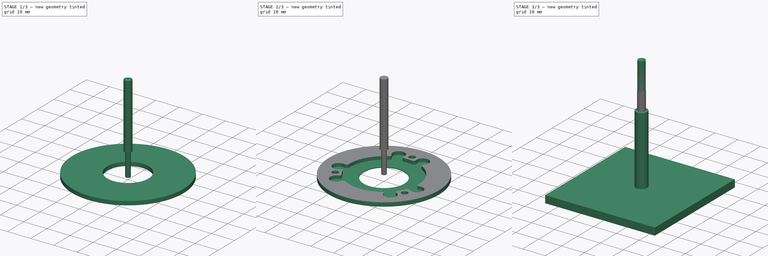
[diagram: build sequence overview — one tinted view per stage of 3, left to right]
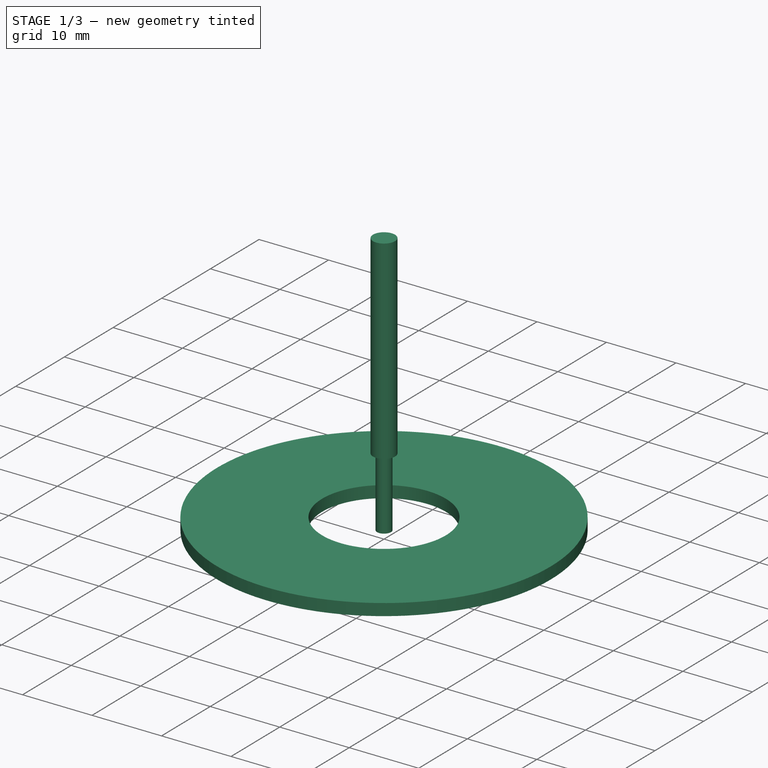
[diagram: stage 1 of 3 — iso view after this stage's code; geometry added in this stage tinted green]
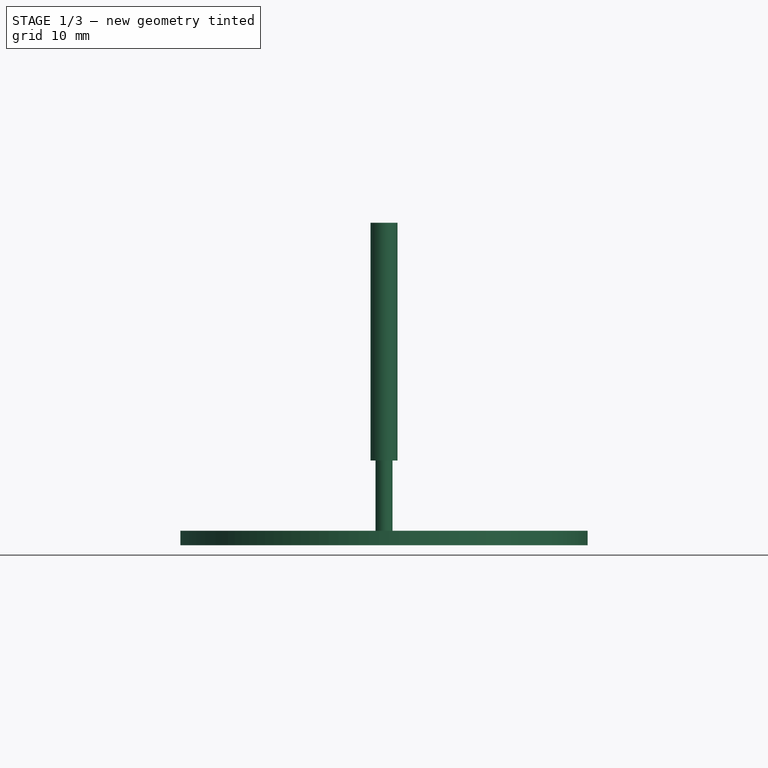
[diagram: stage 1 of 3 — front view after this stage's code; geometry added in this stage tinted green]
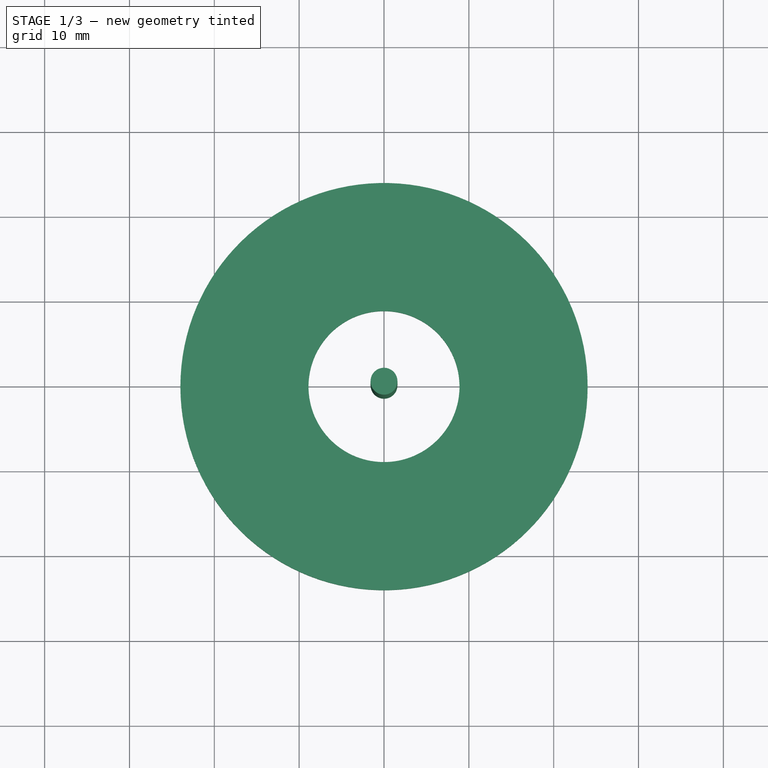
[diagram: stage 1 of 3 — top view after this stage's code; geometry added in this stage tinted green]
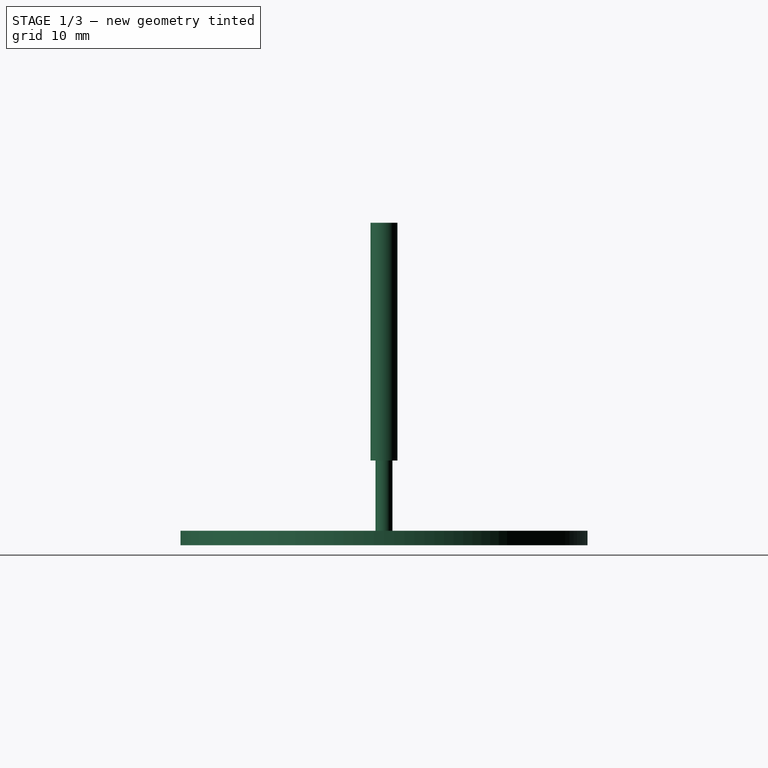
[diagram: stage 1 of 3 — right view after this stage's code; geometry added in this stage tinted green]
FCSTD DOCUMENT  (FreeCAD 0.22R37841 (Git))
Label: magcartrige_cuttop
License: All rights reserved
LicenseURL: http://en.wikipedia.org/wiki/All_rights_reserved
objects: Path::FeaturePython×6, Part::FeaturePython×4, Sketcher::SketchObject×3, App::DocumentObjectGroup×3, PartDesign::CoordinateSystem×2, PartDesign::Revolution×1, PartDesign::Pocket×1, PartDesign::Hole×1, PartDesign::Body×1, App::FeaturePython×1
note: 19 computed .brp shape members not serialized (recipe doc carries the construction recipe); baked Part::Feature solids carry a one-line shape summary decoded from their .brp

FEATURE [PartDesign::CoordinateSystem] LCS_Origin
  AttacherType = Attacher::AttachEngine3D
  MapMode = 2
FEATURE [PartDesign::CoordinateSystem] LCS_Origin001
  AttacherType = Attacher::AttachEngine3D
  AttachmentSupport = -> [X_Axis001]
  MapMode = 2
FEATURE [Sketcher::SketchObject] Sketch
  AttachmentSupport = -> [XZ_Plane001]
  FullyConstrained = true
  MapMode = 5
  Placement = pos=(0,0,0) rot=(1,0,0;1.5708rad)
  sketch-geometry (5):
    g0: LineSegment StartX=0 StartY=0 StartZ=0 EndX=0 EndY=1.7 EndZ=0
    g1: LineSegment StartX=8.9 StartY=0 StartZ=0 EndX=8.9 EndY=1.7 EndZ=0
    g2: LineSegment StartX=24 StartY=0 StartZ=0 EndX=8.9 EndY=0 EndZ=0
    g3: LineSegment StartX=24 StartY=1.7 StartZ=0 EndX=24 EndY=0 EndZ=0
    g4: LineSegment StartX=8.9 StartY=1.7 StartZ=0 EndX=24 EndY=1.7 EndZ=0
  constraints (15):
    c: Coincident(g0,g-1)
    c: PointOnObject(g0,g-2)
    c: PointOnObject(g1,g-1)
    c: PointOnObject(g2,g-1)
    c: Coincident(g2,g1)
    c: Vertical(g1)
    c: DistanceX(g0,g1) = 8.9
    c: DistanceX(g0,g2) = 24
    c: Coincident(g3,g2)
    c: Vertical(g3)
    c: Coincident(g4,g1)
    c: Horizontal(g4)
    c: DistanceY(g3,g3) = 1.7
    c: PointOnObject(g0,g4)
    c: Coincident(g4,g3)
FEATURE [PartDesign::Revolution] Revolution
  Angle = 360
  Angle2 = 60
  Axis = (0,2e-16,1)
  Base = (0,0,0)
  Placement = pos=(0,0,0) rot=(1,0,0;1.5708rad)
  Profile = -> Sketch
  ReferenceAxis = -> Sketch [V_Axis]
  Reversed = true
  Suppressed = false
  Type = 0
FEATURE [Part::FeaturePython] ToolBit001  label="2mm Endmill"  # Path/CAM toolbit (typed FeaturePython)
  BitPropertyNames = Chipload | CuttingEdgeHeight | Diameter | Flutes | Length | Material | ShankDiameter | SpindleDirection
  BitShape = <userpath>/Documents/FreeCAD/Tools/Shape/endmill.fcstd
  Chipload = 0
  CuttingEdgeHeight = 10
  Diameter = 2
  File = <userpath>/Documents/FreeCAD/Tools/Bit/2mm_Endmill.fctb
  Flutes = 0
  Length = 38
  Material = 0
  ShankDiameter = 3.17
  ShapeName = endmill
  SpindleDirection = 0
FEATURE [Path::FeaturePython] _mm_Endmill  label="2mm Endmill001"  # Path/CAM operation (typed FeaturePython)
  HorizFeed = 0.833333
  HorizRapid = 0
  SpindleDir = 0
  SpindleSpeed = 1000
  Tool = -> ToolBit001
  ToolNumber = 2
  VertFeed = 0.833333
  VertRapid = 0
  expr: HorizRapid = SetupSheet.HorizRapid
  expr: VertRapid = SetupSheet.VertRapid
FEATURE [App::DocumentObjectGroup] Tools
  Group = -> [TC__Default_Tool,_mm_Endmill]
FEATURE [Path::FeaturePython] Profile  # Path/CAM operation (typed FeaturePython)
  Active = true
  AreaParams:
    Tolerance = 1e-07
    FitArcs = True
    Simplify = False
    CleanDistance = 0.0
    Accuracy = 0.01
    Unit = 1.0
    MinArcPoints = 4
    MaxArcPoints = 100
    ClipperScale = 10000000.0
    Fill = 0
    Coplanar = 0
    Reorient = True
    Outline = False
    Explode = False
    OpenMode = 0
    Deflection = 0.01
    SubjectFill = 0
    ClipFill = 0
    Offset = -1.0
    ExtraPass = 0
    Stepover = 0.0
    LastStepover = 0.0
    JoinType = 0
    EndType = 0
    MiterLimit = 2.0
    RoundPrecision = 0.0
    PocketMode = 0
    ToolRadius = 1.0
    PocketExtraOffset = 0.0
    PocketStepover = 0.0
    PocketLastStepover = 0.0
    FromCenter = False
    Angle = 45.0
    AngleShift = 0.0
    Shift = 0.0
    Thicken = False
    SectionCount = -1
    Stepdown = 1.0
    SectionOffset = 0.0
    SectionTolerance = 1e-06
    SectionMode = 2
    Project = False
  Base = -> [Clone]
  ClearanceHeight = 5
  CoolantMode = 0
  CycleTime = 00:06:59
  Direction = 0
  FinalDepth = -1.8
  HandleMultipleFeatures = 0
  JoinType = 0
  MiterLimit = 0.1
  OffsetExtra = 0
  OpFinalDepth = 5.8e-15
  OpStartDepth = 0.6
  OpStockZMax = 1.09e-14
  OpStockZMin = -3.2
  OpToolDiameter = 2
  PathParams = {'orientation': 1, 'feedrate': 0.8333333333333334, 'feedrate_v': 0.8333333333333334, 'verbose': True, 'resume_height': 3.0000000000000107, 'retraction': 5.000000000000011, 'return_end': True, 'preamble': False, 'start': Vector (-14.980829684496175, -8.453992709613553, 5.000000000000011)}
  SafeHeight = 3
  Side = 1
  SplitArcs = false
  StartDepth = 0.6
  StartPoint = (0,0,0)
  StepDown = 0.6
  ToolController = -> _mm_Endmill
  UseComp = true
  UseStartPoint = false
  processCircles = false
  processHoles = false
  processPerimeter = true
  expr: ClearanceHeight = OpStockZMax + SetupSheet.ClearanceHeightOffset
  expr: FinalDepth = -1.8
  expr: SafeHeight = OpStockZMax + SetupSheet.SafeHeightOffset
  expr: StartDepth = OpStartDepth
  expr: StepDown = 0.6
FEATURE [Path::FeaturePython] Pocket_Shape  # Path/CAM operation (typed FeaturePython)
  Active = true
  AreaParams:
    Tolerance = 1e-07
    FitArcs = True
    Simplify = False
    CleanDistance = 0.0
    Accuracy = 0.01
    Unit = 1.0
    MinArcPoints = 4
    MaxArcPoints = 100
    ClipperScale = 10000000.0
    Fill = 0
    Coplanar = 0
    Reorient = True
    Outline = False
    Explode = False
    OpenMode = 0
    Deflection = 0.01
    SubjectFill = 0
    ClipFill = 0
    Offset = 0.0
    ExtraPass = 0
    Stepover = 0.0
    LastStepover = 0.0
    JoinType = 0
    EndType = 0
    MiterLimit = 2.0
    RoundPrecision = 0.0
    PocketMode = 2
    ToolRadius = 1.0
    PocketExtraOffset = 0.0
    PocketStepover = 1.0
    PocketLastStepover = 0.0
    FromCenter = True
    Angle = 45.0
    AngleShift = 0.0
    Shift = 0.0
    Thicken = False
    SectionCount = -1
    Stepdown = 1.0
    SectionOffset = 0.0
    SectionTolerance = 1e-06
    SectionMode = 2
    Project = False
  Base = -> [Clone]
  ClearanceHeight = 5
  CoolantMode = 0
  CutMode = 0
  CycleTime = 01:18:27
  ExtensionCorners = true
  ExtensionLengthDefault = 1
  ExtraOffset = 0
  FinalDepth = -1.4
  FinishDepth = 0
  KeepToolDown = false
  MinTravel = true
  OffsetPattern = 1
  OpFinalDepth = -1.4
  OpStartDepth = 1.09e-14
  OpStockZMax = 1.09e-14
  OpStockZMin = -3.2
  OpToolDiameter = 2
  PathParams:
    orientation = 1
    feedrate = 0.8333333333333334
    feedrate_v = 0.8333333333333334
    verbose = True
    resume_height = 3.0000000000000107
    retraction = 5.000000000000011
    return_end = True
    preamble = False
  PocketLastStepOver = 0
  SafeHeight = 3
  SplitArcs = false
  StartAt = 0
  StartDepth = 1.09e-14
  StartPoint = (0,0,0)
  StepDown = 0.25
  StepOver = 50
  ToolController = -> _mm_Endmill
  UseOutline = false
  UseRestMachining = false
  UseStartPoint = false
  ZigZagAngle = 45
  expr: ClearanceHeight = OpStockZMax + SetupSheet.ClearanceHeightOffset
  expr: ExtensionLengthDefault = OpToolDiameter / 2
  expr: FinalDepth = OpFinalDepth
  expr: SafeHeight = OpStockZMax + SetupSheet.SafeHeightOffset
  expr: StartDepth = OpStartDepth
  expr: StepDown = 0.25
FEATURE [Path::FeaturePython] Profile001  # Path/CAM operation (typed FeaturePython)
  Active = true
  AreaParams:
    Tolerance = 1e-07
    FitArcs = True
    Simplify = False
    CleanDistance = 0.0
    Accuracy = 0.01
    Unit = 1.0
    MinArcPoints = 4
    MaxArcPoints = 100
    ClipperScale = 10000000.0
    Fill = 0
    Coplanar = 0
    Reorient = True
    Outline = False
    Explode = False
    OpenMode = 0
    Deflection = 0.01
    SubjectFill = 0
    ClipFill = 0
    Offset = 1.0
    ExtraPass = 0
    Stepover = 0.0
    LastStepover = 0.0
    JoinType = 0
    EndType = 0
    MiterLimit = 2.0
    RoundPrecision = 0.0
    PocketMode = 0
    ToolRadius = 1.0
    PocketExtraOffset = 0.0
    PocketStepover = 0.0
    PocketLastStepover = 0.0
    FromCenter = False
    Angle = 45.0
    AngleShift = 0.0
    Shift = 0.0
    Thicken = False
    SectionCount = -1
    Stepdown = 1.0
    SectionOffset = 0.0
    SectionTolerance = 1e-06
    SectionMode = 2
    Project = False
  Base = -> [Clone]
  ClearanceHeight = 5
  CoolantMode = 0
  CycleTime = 00:19:35
  Direction = 0
  FinalDepth = -1.7
  HandleMultipleFeatures = 0
  JoinType = 0
  MiterLimit = 0.1
  OffsetExtra = 0
  OpFinalDepth = -1.7
  OpStartDepth = 1.09e-14
  OpStockZMax = 1.09e-14
  OpStockZMin = -3.2
  OpToolDiameter = 2
  PathParams:
    orientation = 1
    feedrate = 0.8333333333333334
    feedrate_v = 0.8333333333333334
    verbose = True
    resume_height = 3.0000000000000107
    retraction = 5.000000000000011
    return_end = True
    preamble = False
  SafeHeight = 3
  Side = 0
  SplitArcs = false
  StartDepth = 1.09e-14
  StartPoint = (0,0,0)
  StepDown = 0.3
  ToolController = -> _mm_Endmill
  UseComp = true
  UseStartPoint = false
  processCircles = false
  processHoles = false
  processPerimeter = true
  expr: ClearanceHeight = OpStockZMax + SetupSheet.ClearanceHeightOffset
  expr: FinalDepth = OpFinalDepth
  expr: SafeHeight = OpStockZMax + SetupSheet.SafeHeightOffset
  expr: StartDepth = OpStartDepth
  expr: StepDown = 0.3
FEATURE [App::DocumentObjectGroup] Operations
  Group = -> [Profile,Pocket_Shape,Profile001]
FEATURE [Path::FeaturePython] Job  # Path/CAM operation (typed FeaturePython)
  CycleTime = 01:45:01
  Fixtures = G54
  GeometryTolerance = 0.01
  JobType = 0
  Model = -> Model
  Operations = -> Operations
  OrderOutputBy = 0
  PostProcessor = 11
  SetupSheet = -> SetupSheet
  SplitOutput = false
  Stock = -> Stock
  Tools = -> Tools
note: 1 file-system path scrubbed to <path> (originals preserved in the JSON sidecar)
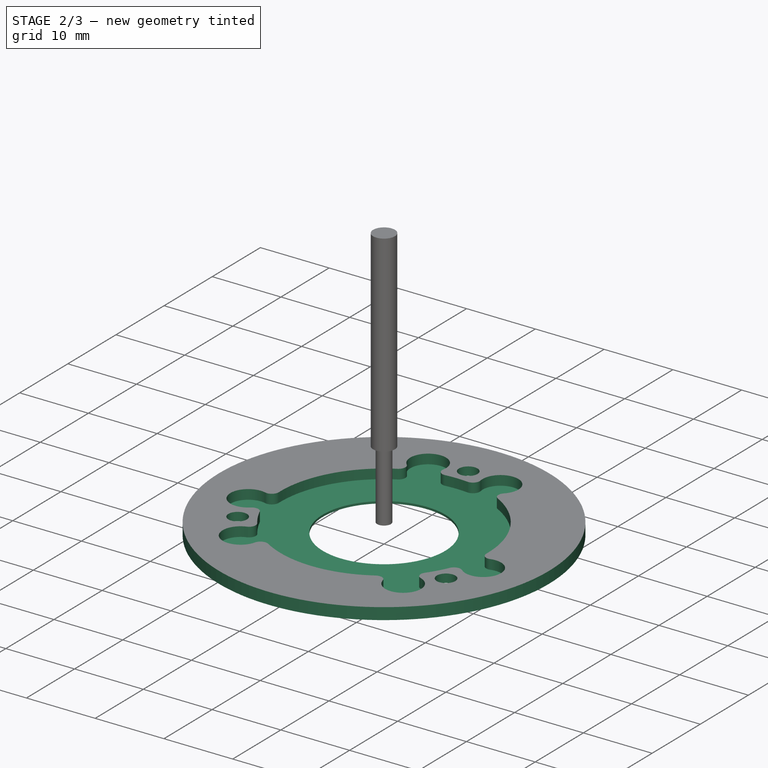
[diagram: stage 2 of 3 — iso view after this stage's code; geometry added in this stage tinted green]
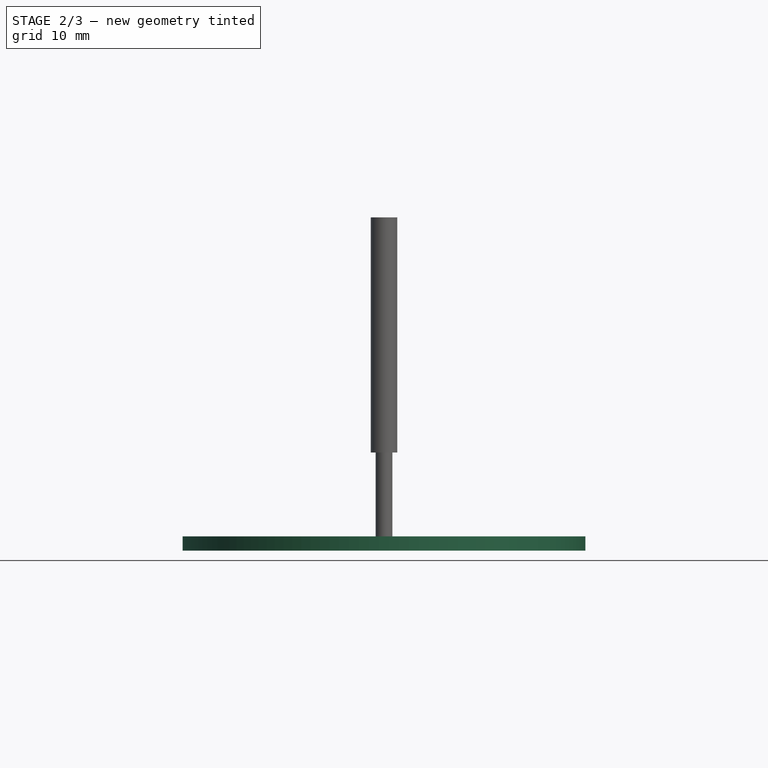
[diagram: stage 2 of 3 — front view after this stage's code; geometry added in this stage tinted green]
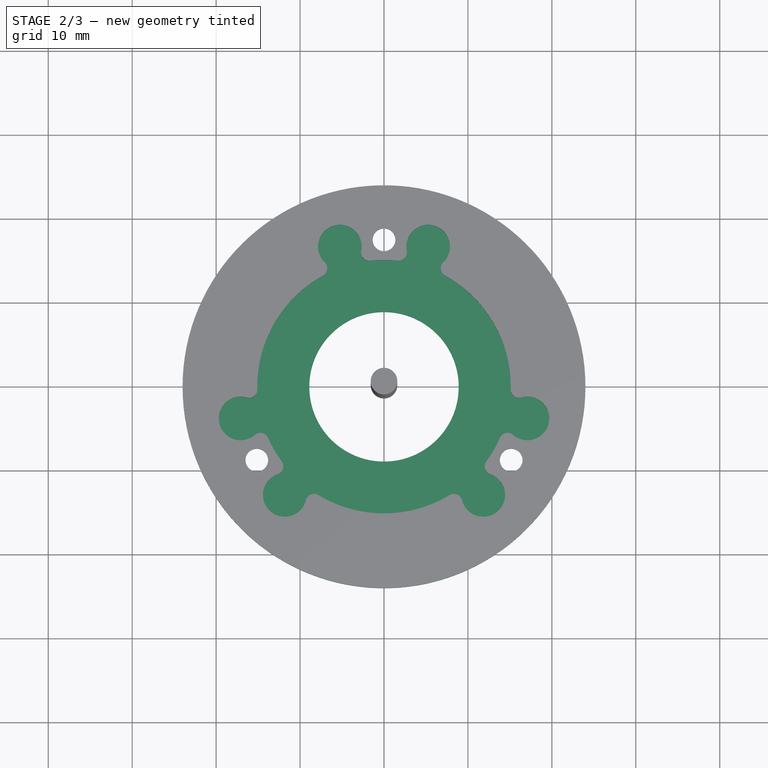
[diagram: stage 2 of 3 — top view after this stage's code; geometry added in this stage tinted green]
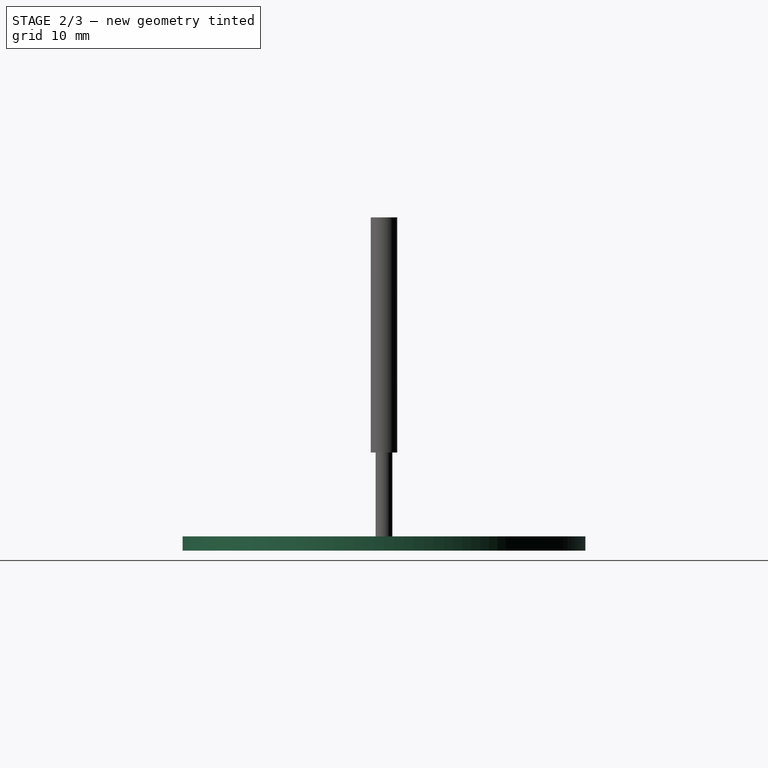
[diagram: stage 2 of 3 — right view after this stage's code; geometry added in this stage tinted green]
FEATURE [Sketcher::SketchObject] Sketch001
  AttachmentOffset = pos=(0,0,0.3) rot=(0,0,1;0rad)
  AttachmentSupport = -> [XY_Plane001]
  FullyConstrained = true
  MapMode = 5
  Placement = pos=(0,0,0.3) rot=(0,0,1;0rad)
  sketch-geometry (32):
    g0: LineSegment StartX=17.0852 StartY=-3.78769 StartZ=0 EndX=5.26235 EndY=16.69 EndZ=0
    g1: LineSegment StartX=5.26235 StartY=16.69 StartZ=0 EndX=-5.26235 EndY=16.69 EndZ=0
    g2: LineSegment StartX=-5.26235 StartY=16.69 StartZ=0 EndX=-17.0852 EndY=-3.78769 EndZ=0
    g3: LineSegment StartX=-17.0852 StartY=-3.78769 StartZ=0 EndX=-11.8228 EndY=-12.9024 EndZ=0
    g4: LineSegment StartX=-11.8228 StartY=-12.9024 StartZ=0 EndX=11.8228 EndY=-12.9024 EndZ=0
    g5: LineSegment StartX=11.8228 StartY=-12.9024 StartZ=0 EndX=17.0852 EndY=-3.78769 EndZ=0
    g6: Circle CenterX=0 CenterY=0 CenterZ=0 NormalX=0 NormalY=0 NormalZ=1 AngleXU=0 Radius=17.5
    g7: ArcOfCircle CenterX=-17.0852 CenterY=-3.78769 CenterZ=0 NormalX=0 NormalY=0 NormalZ=1 AngleXU=0 Radius=2.6 StartAngle=1.29265 EndAngle=5.42687
    g8: ArcOfCircle CenterX=-14.7264 CenterY=-6.50725 CenterZ=0 NormalX=0 NormalY=0 NormalZ=1 AngleXU=0 Radius=1 StartAngle=0.416079 EndAngle=2.28528
    g9: ArcOfCircle CenterX=-16.0967 CenterY=-0.32606 CenterZ=0 NormalX=0 NormalY=0 NormalZ=1 AngleXU=0 Radius=1 StartAngle=4.43424 EndAngle=6.30344
    g10: ArcOfCircle CenterX=0 CenterY=0 CenterZ=0 NormalX=0 NormalY=0 NormalZ=1 AngleXU=0 Radius=15.1 StartAngle=2.07414 EndAngle=3.16185
    g11: ArcOfCircle CenterX=-5.26235 CenterY=16.69 CenterZ=0 NormalX=0 NormalY=0 NormalZ=1 AngleXU=0 Radius=2.6 StartAngle=6.0923 EndAngle=10.2265
    g12: ArcOfCircle CenterX=-7.76597 CenterY=14.1032 CenterZ=0 NormalX=0 NormalY=0 NormalZ=1 AngleXU=0 Radius=1 StartAngle=5.21573 EndAngle=7.08494
    g13: ArcOfCircle CenterX=0 CenterY=0 CenterZ=0 NormalX=0 NormalY=0 NormalZ=1 AngleXU=0 Radius=15.1 StartAngle=1.46328 EndAngle=1.67832
    g14: ArcOfCircle CenterX=5.26235 CenterY=16.69 CenterZ=0 NormalX=0 NormalY=0 NormalZ=1 AngleXU=0 Radius=2.6 StartAngle=5.48144 EndAngle=9.61566
    g15: ArcOfCircle CenterX=0 CenterY=0 CenterZ=0 NormalX=0 NormalY=0 NormalZ=1 AngleXU=0 Radius=15.1 StartAngle=6.26293 EndAngle=7.35064
    g16: ArcOfCircle CenterX=17.0852 CenterY=-3.78769 CenterZ=0 NormalX=0 NormalY=0 NormalZ=1 AngleXU=0 Radius=2.6 StartAngle=3.99791 EndAngle=8.13213
    g17: ArcOfCircle CenterX=0 CenterY=0 CenterZ=0 NormalX=0 NormalY=0 NormalZ=1 AngleXU=0 Radius=15.1 StartAngle=5.65207 EndAngle=5.86711
    g18: ArcOfCircle CenterX=11.8228 CenterY=-12.9024 CenterZ=0 NormalX=0 NormalY=0 NormalZ=1 AngleXU=0 Radius=2.6 StartAngle=3.38704 EndAngle=7.52127
    g19: ArcOfCircle CenterX=0 CenterY=0 CenterZ=0 NormalX=0 NormalY=0 NormalZ=1 AngleXU=0 Radius=15.1 StartAngle=4.16854 EndAngle=5.25624
    g20: ArcOfCircle CenterX=-11.8228 CenterY=-12.9024 CenterZ=0 NormalX=0 NormalY=0 NormalZ=1 AngleXU=0 Radius=2.6 StartAngle=1.90351 EndAngle=6.03774
    g21: ArcOfCircle CenterX=0 CenterY=0 CenterZ=0 NormalX=0 NormalY=0 NormalZ=1 AngleXU=0 Radius=15.1 StartAngle=3.55767 EndAngle=3.77271
    g22: ArcOfCircle CenterX=-1.72774 CenterY=16.007 CenterZ=0 NormalX=0 NormalY=0 NormalZ=1 AngleXU=0 Radius=1 StartAngle=2.95071 EndAngle=4.81991
    g23: ArcOfCircle CenterX=1.72774 CenterY=16.007 CenterZ=0 NormalX=0 NormalY=0 NormalZ=1 AngleXU=0 Radius=1 StartAngle=4.60487 EndAngle=6.47407
    g24: ArcOfCircle CenterX=7.76597 CenterY=14.1032 CenterZ=0 NormalX=0 NormalY=0 NormalZ=1 AngleXU=0 Radius=1 StartAngle=2.33984 EndAngle=4.20904
    g25: ArcOfCircle CenterX=16.0967 CenterY=-0.32606 CenterZ=0 NormalX=0 NormalY=0 NormalZ=1 AngleXU=0 Radius=1 StartAngle=3.12134 EndAngle=4.99054
    g26: ArcOfCircle CenterX=14.7264 CenterY=-6.50725 CenterZ=0 NormalX=0 NormalY=0 NormalZ=1 AngleXU=0 Radius=1 StartAngle=0.856313 EndAngle=2.72551
    g27: ArcOfCircle CenterX=12.9986 CenterY=-9.49978 CenterZ=0 NormalX=0 NormalY=0 NormalZ=1 AngleXU=0 Radius=1 StartAngle=2.51047 EndAngle=4.37967
    g28: ArcOfCircle CenterX=8.33073 CenterY=-13.7771 CenterZ=0 NormalX=0 NormalY=0 NormalZ=1 AngleXU=0 Radius=1 StartAngle=0.245448 EndAngle=2.11465
    g29: ArcOfCircle CenterX=-8.33073 CenterY=-13.7771 CenterZ=0 NormalX=0 NormalY=0 NormalZ=1 AngleXU=0 Radius=1 StartAngle=1.02694 EndAngle=2.89615
    g30: ArcOfCircle CenterX=-12.9986 CenterY=-9.49978 CenterZ=0 NormalX=0 NormalY=0 NormalZ=1 AngleXU=0 Radius=1 StartAngle=5.0451 EndAngle=6.9143
    g31: LineSegment StartX=0 StartY=0 StartZ=0 EndX=-5.26235 EndY=16.69 EndZ=0
  constraints (82):
    c: Coincident(g0,g1)
    c: Coincident(g1,g2)
    c: Coincident(g2,g3)
    c: Coincident(g3,g4)
    c: Coincident(g4,g5)
    c: Coincident(g5,g0)
    c: PointOnObject(g1,g6)
    c: PointOnObject(g2,g6)
    c: PointOnObject(g3,g6)
    c: PointOnObject(g4,g6)
    c: Coincident(g6,g-1)
    c: Diameter(g6) = 35
    c: Coincident(g7,g2)
    c: Coincident(g10,g6)
    c: Coincident(g11,g1)
    c: Tangent(g11,g12) = 1.5708
    c: Tangent(g10,g12) = 1.5708
    c: Coincident(g13,g6)
    c: Coincident(g14,g0)
    c: Coincident(g15,g6)
    c: Coincident(g17,g6)
    c: Coincident(g18,g4)
    c: Coincident(g19,g6)
    c: Coincident(g20,g3)
    c: Coincident(g21,g6)
    c: Tangent(g8,g7) = 1.5708
    c: Tangent(g21,g8) = 1.5708
    c: Tangent(g9,g10) = 1.5708
    c: Tangent(g9,g7) = 1.5708
    c: Tangent(g11,g22) = 1.5708
    c: Tangent(g13,g22) = 1.5708
    c: Tangent(g13,g23) = 1.5708
    c: Tangent(g14,g23) = 1.5708
    c: Tangent(g14,g24) = 1.5708
    c: Tangent(g15,g24) = 1.5708
    c: Tangent(g15,g25) = 1.5708
    c: Tangent(g16,g25) = 1.5708
    c: Tangent(g16,g26) = 1.5708
    c: Tangent(g17,g26) = 1.5708
    c: Tangent(g18,g27) = 1.5708
    c: Tangent(g17,g27) = 1.5708
    c: Tangent(g18,g28) = 1.5708
    c: Tangent(g19,g28) = 1.5708
    c: Tangent(g19,g29) = 1.5708
    c: Tangent(g20,g29) = 1.5708
    c: Tangent(g21,g30) = 1.5708
    c: Tangent(g20,g30) = 1.5708
    c: Equal(g21,g10)
    c: Equal(g8,g9)
    c: Equal(g12,g22)
    c: Equal(g23,g24)
    c: Equal(g25,g26)
    c: Equal(g25,g24)
    c: Equal(g23,g22)
    c: Equal(g27,g26)
    c: Equal(g27,g28)
    c: Equal(g28,g29)
    c: Equal(g29,g30)
    c: Equal(g30,g8)
    c: Radius(g7) = 2.6
    c: Radius(g8) = 1
    c: Radius(g21) = 15.1
    c: Equal(g7,g11)
    c: Equal(g11,g14)
    c: Equal(g14,g16)
    c: Equal(g16,g18)
    c: Equal(g18,g20)
    c: Equal(g19,g21)
    c: Equal(g19,g17)
    c: Equal(g17,g15)
    c: Equal(g15,g13)
    c: Horizontal(g1)
    c: Coincident(g31,g6)
    c: Coincident(g31,g1)
    c: Angle(g-2,g31) = 0.305433
    c: Coincident(g0,g16)
    c: PointOnObject(g0,g6)
    c: Parallel(g4,g1)
    c: Equal(g2,g4)
    c: Equal(g0,g2)
    c: Equal(g3,g1)
    c: PointOnObject(g0,g6)
FEATURE [PartDesign::Pocket] Pocket
  BaseFeature = -> Revolution
  Direction = (0,0,-1)
  Length = 5.2
  Length2 = 5
  Placement = pos=(0,0,0) rot=(1,0,0;1.5708rad)
  Profile = -> Sketch001
  ReferenceAxis = -> Sketch001 [N_Axis]
  Reversed = true
  Suppressed = false
  Type = 0
FEATURE [Sketcher::SketchObject] Sketch002
  AttachmentSupport = -> [XY_Plane001]
  FullyConstrained = true
  MapMode = 5
  sketch-geometry (5):
    g0: Circle CenterX=0 CenterY=0 CenterZ=0 NormalX=0 NormalY=0 NormalZ=1 AngleXU=0 Radius=17.5
    g1: Circle CenterX=0 CenterY=17.5 CenterZ=0 NormalX=0 NormalY=0 NormalZ=1 AngleXU=0 Radius=1.35
    g2: Circle CenterX=-15.1554 CenterY=-8.75 CenterZ=0 NormalX=0 NormalY=0 NormalZ=1 AngleXU=0 Radius=1.35
    g3: Circle CenterX=15.1554 CenterY=-8.75 CenterZ=0 NormalX=0 NormalY=0 NormalZ=1 AngleXU=0 Radius=1.35
    g4: LineSegment StartX=0 StartY=0 StartZ=0 EndX=15.1554 EndY=-8.75 EndZ=0
  constraints (13):
    c: Coincident(g0,g-1)
    c: PointOnObject(g1,g0)
    c: PointOnObject(g2,g0)
    c: PointOnObject(g3,g0)
    c: Horizontal(g2,g3)
    c: PointOnObject(g1,g-2)
    c: Equal(g1,g2)
    c: Equal(g1,g3)
    c: Diameter(g0) = 35
    c: Diameter(g3) = 2.7
    c: Coincident(g4,g0)
    c: Coincident(g4,g3)
    c: Angle(g4,g-2) = 2.0944
FEATURE [PartDesign::Hole] Hole
  BaseFeature = -> Pocket
  CustomThreadClearance = 0
  Depth = 136.998
  DepthType = 1
  Diameter = 2.7
  DrillForDepth = false
  DrillPoint = 1
  DrillPointAngle = 118
  HoleCutCountersinkAngle = 90
  HoleCutCustomValues = false
  HoleCutDepth = 0.7
  HoleCutDiameter = 4.7
  HoleCutType = 1
  ModelThread = false
  Placement = pos=(0,0,0) rot=(1,0,0;1.5708rad)
  Profile = -> Sketch002
  Reversed = true
  Suppressed = false
  Tapered = false
  TaperedAngle = 90
  ThreadClass = 0
  ThreadDepth = 136.998
  ThreadDepthType = 0
  ThreadDirection = 0
  ThreadFit = 1
  ThreadSize = 8
  ThreadType = 1
  Threaded = false
  UseCustomThreadClearance = false
FEATURE [PartDesign::Body] Body
  AllowCompound = false
  Group = -> [LCS_Origin001,Sketch,Revolution,Sketch001,Pocket,Sketch002,Hole]
  Origin = -> Origin001
  Tip = -> Hole
FEATURE [App::FeaturePython] SetupSheet  # Path/CAM operation (typed FeaturePython)
  ClearanceHeightExpression = OpStockZMax+SetupSheet.ClearanceHeightOffset
  ClearanceHeightOffset = 5
  CoolantMode = 0
  CoolantModes = None | Flood | Mist
  FinalDepthExpression = OpFinalDepth
  HorizRapid = 0
  SafeHeightExpression = OpStockZMax+SetupSheet.SafeHeightOffset
  SafeHeightOffset = 3
  StartDepthExpression = OpStartDepth
  StepDownExpression = OpToolDiameter
  VertRapid = 0
FEATURE [Part::FeaturePython] Clone  label="Model-Body"  # Draft clone (typed FeaturePython)
  AttacherType = Attacher::AttachEngine3D
  Fuse = false
  Objects = -> [Body]
  PathResource = Model
  Placement = pos=(0,0,-1.7) rot=(0,0,1;0rad)
  Scale = (1,1,1)
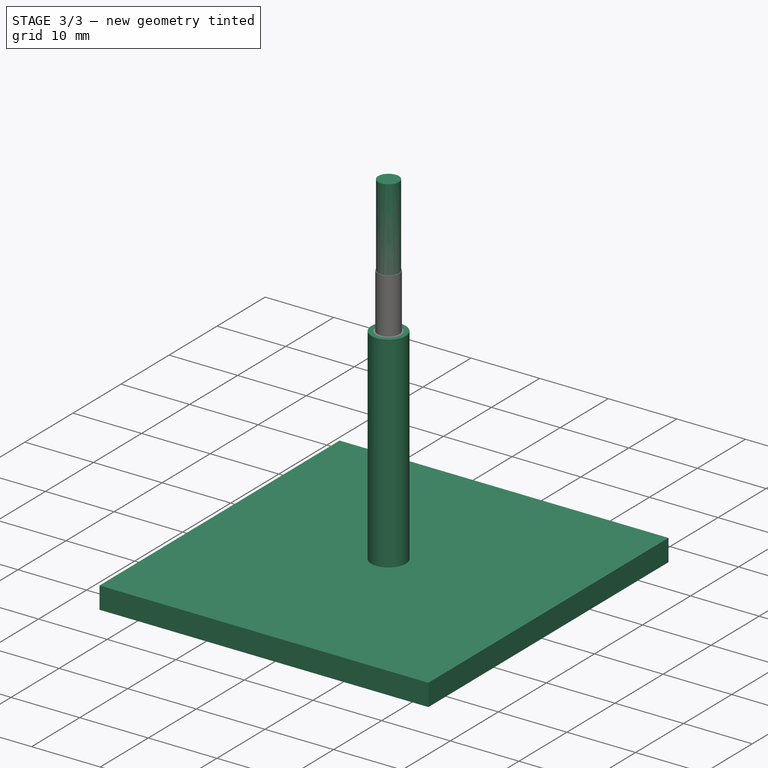
[diagram: stage 3 of 3 — iso view after this stage's code; geometry added in this stage tinted green]
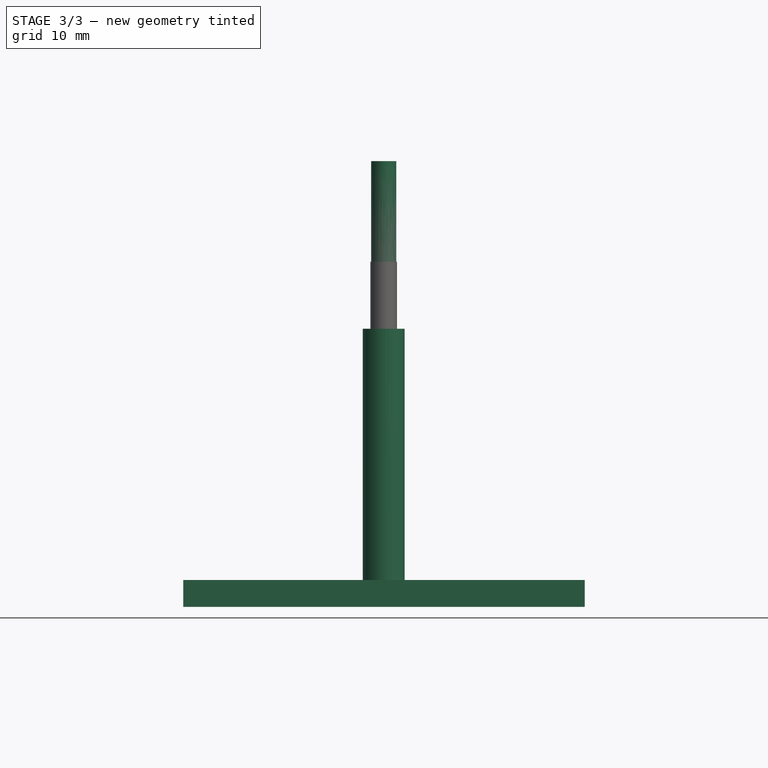
[diagram: stage 3 of 3 — front view after this stage's code; geometry added in this stage tinted green]
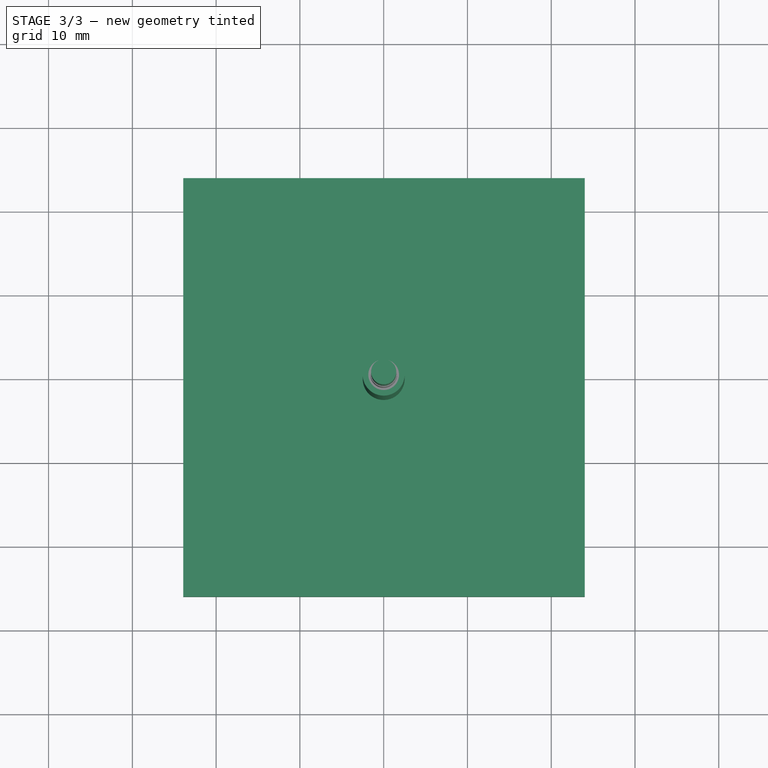
[diagram: stage 3 of 3 — top view after this stage's code; geometry added in this stage tinted green]
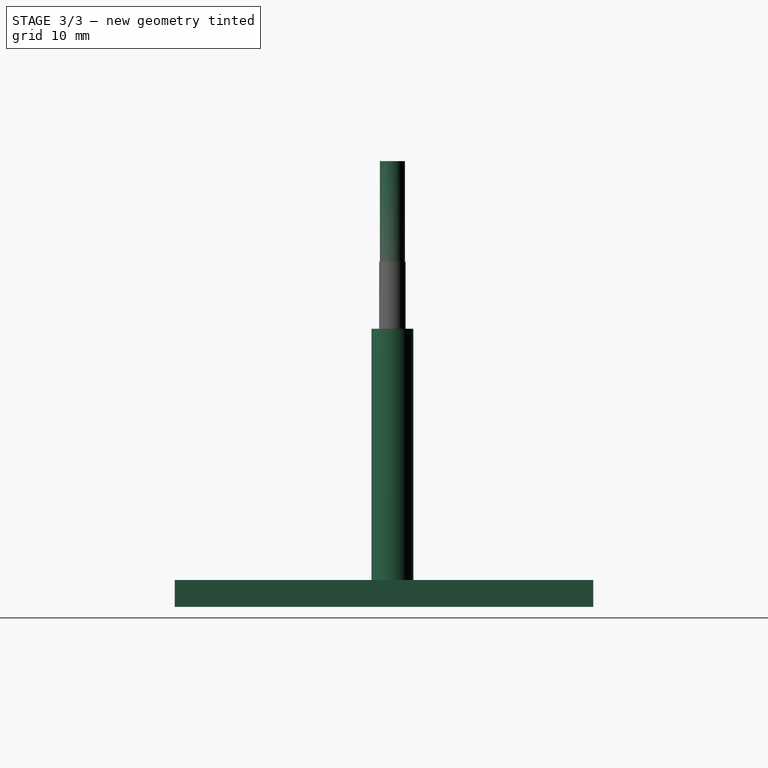
[diagram: stage 3 of 3 — right view after this stage's code; geometry added in this stage tinted green]
FEATURE [App::DocumentObjectGroup] Model
  Group = -> [Clone]
FEATURE [Part::FeaturePython] ToolBit  label="Endmill"  # Path/CAM toolbit (typed FeaturePython)
  BitPropertyNames = Chipload | CuttingEdgeHeight | Diameter | Flutes | Length | Material | ShankDiameter | SpindleDirection
  BitShape = <path>
  Chipload = 0
  CuttingEdgeHeight = 30
  Diameter = 5
  Flutes = 0
  Length = 50
  Material = 0
  ShankDiameter = 3
  ShapeName = endmill
  SpindleDirection = 0
FEATURE [Path::FeaturePython] TC__Default_Tool  label="TC: Default Tool"  # Path/CAM operation (typed FeaturePython)
  HorizFeed = 0
  HorizRapid = 0
  SpindleDir = 0
  SpindleSpeed = 0
  Tool = -> ToolBit
  ToolNumber = 1
  VertFeed = 0
  VertRapid = 0
  expr: HorizRapid = SetupSheet.HorizRapid
  expr: VertRapid = SetupSheet.VertRapid
FEATURE [Part::FeaturePython] Stock  # WARN: FeaturePython — macro-defined, semantics opaque (R4)
  Base = -> Model
  ExtXneg = 0
  ExtXpos = 0
  ExtYneg = 2
  ExtYpos = 0
  ExtZneg = 1.5
  ExtZpos = 0
  Placement = pos=(-23.9222,-23.9805,-1.7) rot=(0,0,1;0rad)
  StockType = FromBase
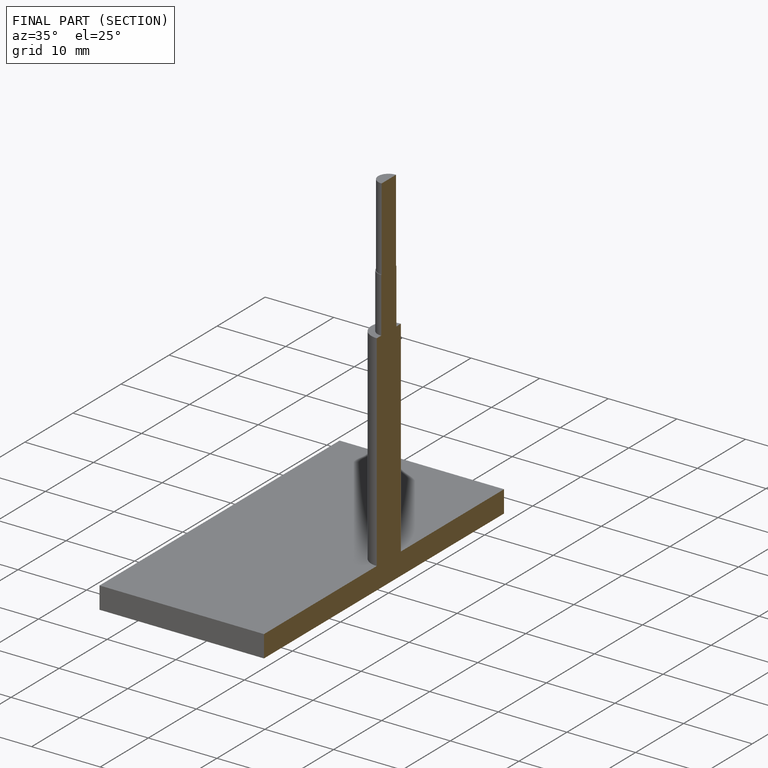
[diagram: finished part — half-section view (interior)]
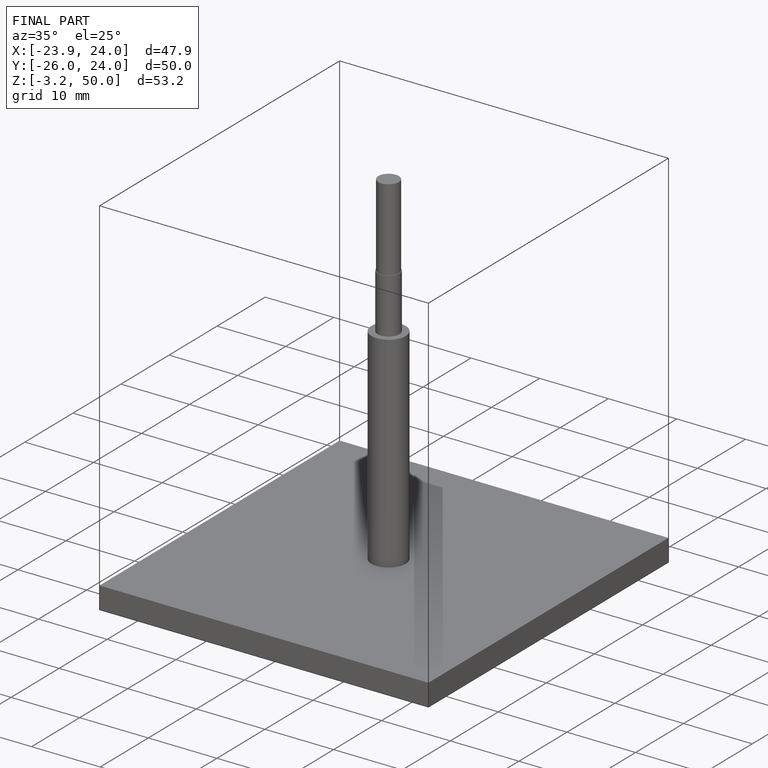
[diagram: finished part — iso view with bounding-box wireframe]
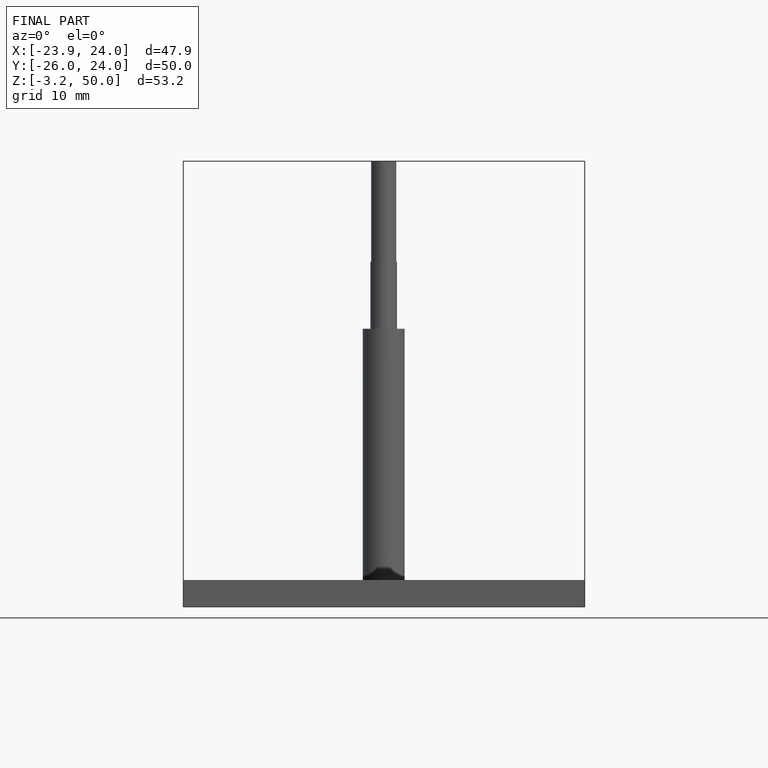
[diagram: finished part — front view with bounding-box wireframe]
